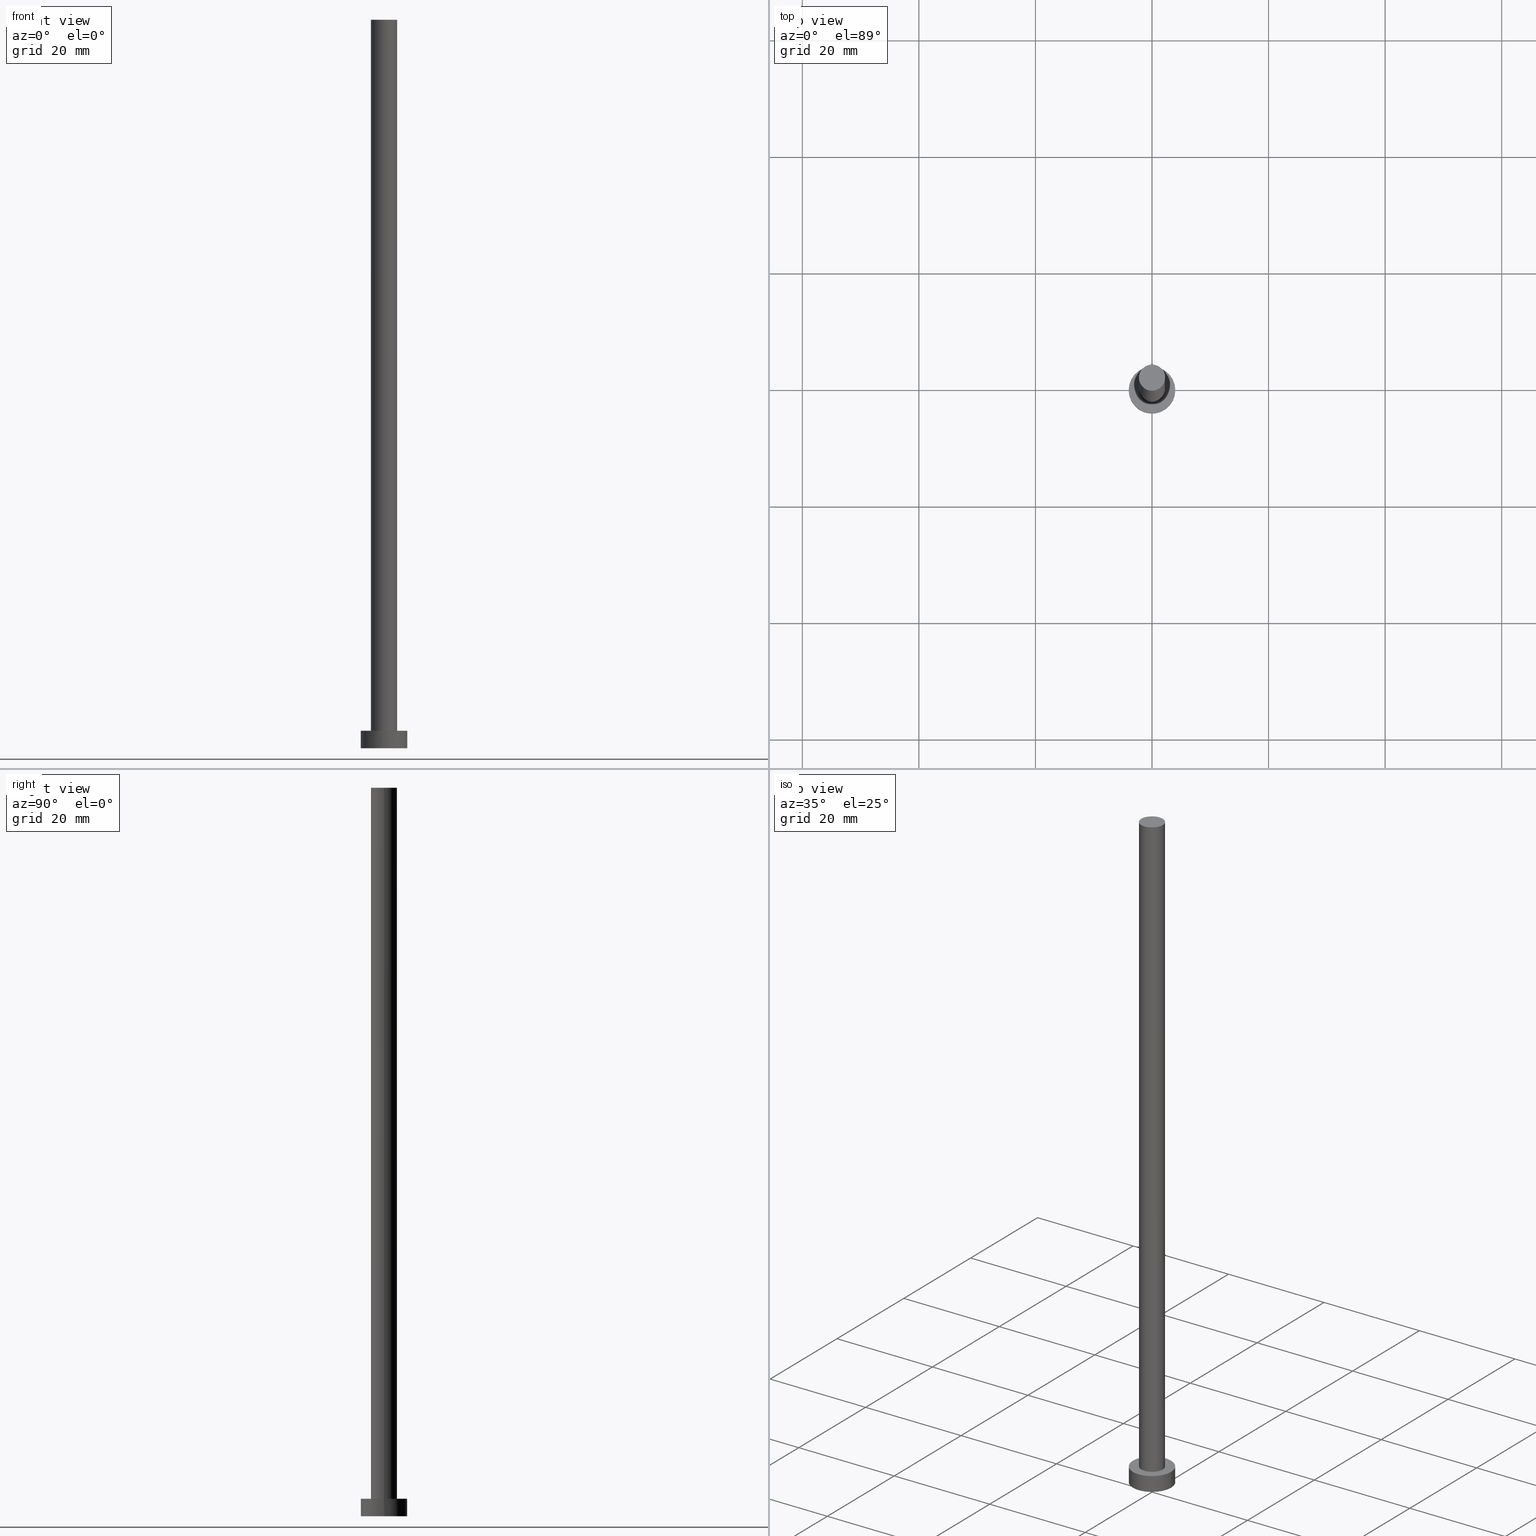
[diagram: canonical four-view strip — front | top / right | iso, engineering-drawing reading convention]
A machine part, canonical four-view strip (front | top / right | iso — engineering-drawing reading convention). The complete STEP part file that produces these views, byte-faithful:
ISO-10303-21;
HEADER;
FILE_DESCRIPTION (( 'STEP AP203' ),
    '1' );
FILE_NAME ('0cb3.STEP',
    '2023-02-12T11:53:39',
    ( '' ),
    ( '' ),
    'SwSTEP 2.0',
    'SolidWorks 2019',
    '' );
FILE_SCHEMA (( 'CONFIG_CONTROL_DESIGN' ));
ENDSEC;

DATA;
#1 = COORDINATED_UNIVERSAL_TIME_OFFSET ( 1, 0, .AHEAD. ) ;
#2 = PRODUCT_DEFINITION ( 'NEZN�M�', '', #146, #51 ) ;
#3 = AXIS2_PLACEMENT_3D ( 'NONE', #52, #134, #210 ) ;
#4 =( NAMED_UNIT ( * ) SI_UNIT ( $, .STERADIAN. ) SOLID_ANGLE_UNIT ( ) );
#5 = PERSON_AND_ORGANIZATION ( #17, #130 ) ;
#6 = DATE_AND_TIME ( #28, #213 ) ;
#7 = DIRECTION ( 'NONE',  ( -0.000000000000000000, -0.000000000000000000, -1.000000000000000000 ) ) ;
#8 = ORIENTED_EDGE ( 'NONE', *, *, #242, .T. ) ;
#9 = DIRECTION ( 'NONE',  ( 1.000000000000000000, 0.000000000000000000, 0.000000000000000000 ) ) ;
#10 = PERSON_AND_ORGANIZATION_ROLE ( 'classification_officer' ) ;
#11 = AXIS2_PLACEMENT_3D ( 'NONE', #143, #24, #237 ) ;
#12 = PERSON_AND_ORGANIZATION ( #17, #130 ) ;
#13 = ORIENTED_EDGE ( 'NONE', *, *, #103, .T. ) ;
#14 = CARTESIAN_POINT ( 'NONE',  ( 0.000000000000000000, 0.000000000000000000, 125.0000000000000000 ) ) ;
#15 = EDGE_CURVE ( 'NONE', #175, #171, #78, .T. ) ;
#16 = DIRECTION ( 'NONE',  ( -0.000000000000000000, -0.000000000000000000, -1.000000000000000000 ) ) ;
#17 = PERSON ( 'NEUR�EN�', 'NEUR�EN�', 'NEUR�EN�', ('NEUR�EN�'), ('NEUR�EN�'), ('NEUR�EN�') ) ;
#18 = AXIS2_PLACEMENT_3D ( 'NONE', #21, #252, #125 ) ;
#19 = DIRECTION ( 'NONE',  ( -1.000000000000000000, 0.000000000000000000, 0.000000000000000000 ) ) ;
#20 = SHAPE_DEFINITION_REPRESENTATION ( #155, #42 ) ;
#21 = CARTESIAN_POINT ( 'NONE',  ( 0.000000000000000000, 0.000000000000000000, 0.000000000000000000 ) ) ;
#22 = EDGE_CURVE ( 'NONE', #73, #116, #126, .T. ) ;
#23 = CARTESIAN_POINT ( 'NONE',  ( -4.000000000000000000, 0.000000000000000000, 3.000000000000000000 ) ) ;
#24 = DIRECTION ( 'NONE',  ( 0.000000000000000000, 0.000000000000000000, 1.000000000000000000 ) ) ;
#25 = VERTEX_POINT ( 'NONE', #172 ) ;
#26 = ADVANCED_FACE ( 'NONE', ( #243 ), #133, .T. ) ;
#27 = EDGE_LOOP ( 'NONE', ( #66, #247, #57, #13 ) ) ;
#28 = CALENDAR_DATE ( 2023, 12, 2 ) ;
#29 = ORIENTED_EDGE ( 'NONE', *, *, #230, .F. ) ;
#30 = APPLICATION_CONTEXT ( 'configuration controlled 3d designs of mechanical parts and assemblies' ) ;
#31 = SECURITY_CLASSIFICATION ( '', '', #209 ) ;
#32 = FACE_OUTER_BOUND ( 'NONE', #71, .T. ) ;
#33 = APPROVAL_ROLE ( '' ) ;
#34 = EDGE_CURVE ( 'NONE', #136, #114, #228, .T. ) ;
#35 = ORIENTED_EDGE ( 'NONE', *, *, #208, .F. ) ;
#36 = ORIENTED_EDGE ( 'NONE', *, *, #15, .F. ) ;
#37 = FACE_OUTER_BOUND ( 'NONE', #191, .T. ) ;
#38 = CARTESIAN_POINT ( 'NONE',  ( 4.000000000000000000, 4.898587196589412829E-16, 0.000000000000000000 ) ) ;
#39 = CYLINDRICAL_SURFACE ( 'NONE', #249, 2.250000000000000000 ) ;
#40 = EDGE_CURVE ( 'NONE', #136, #175, #53, .T. ) ;
#41 = CARTESIAN_POINT ( 'NONE',  ( 0.000000000000000000, 0.000000000000000000, 125.0000000000000000 ) ) ;
#42 = ADVANCED_BREP_SHAPE_REPRESENTATION ( '0cb3', ( #49, #11 ), #178 ) ;
#43 = PERSON_AND_ORGANIZATION ( #17, #130 ) ;
#44 =( NAMED_UNIT ( * ) PLANE_ANGLE_UNIT ( ) SI_UNIT ( $, .RADIAN. ) );
#45 = APPROVAL_ROLE ( '' ) ;
#46 = DATE_TIME_ROLE ( 'classification_date' ) ;
#47 = MECHANICAL_CONTEXT ( 'NONE', #30, 'mechanical' ) ;
#48 = AXIS2_PLACEMENT_3D ( 'NONE', #63, #80, #124 ) ;
#49 = MANIFOLD_SOLID_BREP ( 'P�idat vysunut�m3', #140 ) ;
#50 = CARTESIAN_POINT ( 'NONE',  ( 2.250000000000000000, 2.755455298081543792E-16, 125.0000000000000000 ) ) ;
#51 = DESIGN_CONTEXT ( 'detailed design', #169, 'design' ) ;
#52 = CARTESIAN_POINT ( 'NONE',  ( 0.000000000000000000, 0.000000000000000000, 3.000000000000000000 ) ) ;
#53 = CIRCLE ( 'NONE', #88, 2.250000000000000000 ) ;
#54 = EDGE_CURVE ( 'NONE', #188, #25, #122, .T. ) ;
#55 = CARTESIAN_POINT ( 'NONE',  ( 0.000000000000000000, 0.000000000000000000, 125.0000000000000000 ) ) ;
#56 = ORIENTED_EDGE ( 'NONE', *, *, #54, .T. ) ;
#57 = ORIENTED_EDGE ( 'NONE', *, *, #15, .T. ) ;
#58 = CC_DESIGN_PERSON_AND_ORGANIZATION_ASSIGNMENT ( #12, #70, ( #146 ) ) ;
#59 = CC_DESIGN_APPROVAL ( #158, ( #2 ) ) ;
#60 = LINE ( 'NONE', #23, #227 ) ;
#61 = FACE_OUTER_BOUND ( 'NONE', #154, .T. ) ;
#62 = LINE ( 'NONE', #139, #235 ) ;
#63 = CARTESIAN_POINT ( 'NONE',  ( 0.000000000000000000, 0.000000000000000000, 3.000000000000000000 ) ) ;
#64 = DATE_AND_TIME ( #166, #254 ) ;
#65 = PERSON_AND_ORGANIZATION ( #17, #130 ) ;
#66 = ORIENTED_EDGE ( 'NONE', *, *, #34, .F. ) ;
#67 = ADVANCED_FACE ( 'NONE', ( #32 ), #115, .T. ) ;
#68 = APPLICATION_PROTOCOL_DEFINITION ( 'international standard', 'config_control_design', 1994, #30 ) ;
#69 = APPROVAL_PERSON_ORGANIZATION ( #190, #201, #33 ) ;
#70 = PERSON_AND_ORGANIZATION_ROLE ( 'design_supplier' ) ;
#71 = EDGE_LOOP ( 'NONE', ( #239, #152, #96, #117 ) ) ;
#72 = LOCAL_TIME ( 12, 53, 39.00000000000000000, #203 ) ;
#73 = VERTEX_POINT ( 'NONE', #38 ) ;
#74 = PRODUCT ( '0cb3', '0cb3', '', ( #47 ) ) ;
#75 = AXIS2_PLACEMENT_3D ( 'NONE', #231, #197, #138 ) ;
#76 = DATE_AND_TIME ( #93, #177 ) ;
#77 = EDGE_LOOP ( 'NONE', ( #244, #112 ) ) ;
#78 = LINE ( 'NONE', #156, #222 ) ;
#79 = CC_DESIGN_APPROVAL ( #173, ( #31 ) ) ;
#80 = DIRECTION ( 'NONE',  ( -0.000000000000000000, -0.000000000000000000, -1.000000000000000000 ) ) ;
#81 = DIRECTION ( 'NONE',  ( 1.000000000000000000, 0.000000000000000000, 0.000000000000000000 ) ) ;
#82 = CARTESIAN_POINT ( 'NONE',  ( 2.250000000000000000, 2.755455298081543792E-16, 125.0000000000000000 ) ) ;
#83 = EDGE_CURVE ( 'NONE', #175, #136, #224, .T. ) ;
#84 = DIRECTION ( 'NONE',  ( 0.000000000000000000, 0.000000000000000000, 1.000000000000000000 ) ) ;
#85 = DIRECTION ( 'NONE',  ( -0.000000000000000000, -0.000000000000000000, -1.000000000000000000 ) ) ;
#86 = CALENDAR_DATE ( 2023, 12, 2 ) ;
#87 = DATE_AND_TIME ( #86, #147 ) ;
#88 = AXIS2_PLACEMENT_3D ( 'NONE', #55, #151, #226 ) ;
#89 = AXIS2_PLACEMENT_3D ( 'NONE', #101, #248, #142 ) ;
#90 = APPROVAL_STATUS ( 'not_yet_approved' ) ;
#91 = CARTESIAN_POINT ( 'NONE',  ( 0.000000000000000000, 0.000000000000000000, 0.000000000000000000 ) ) ;
#92 = AXIS2_PLACEMENT_3D ( 'NONE', #41, #251, #163 ) ;
#93 = CALENDAR_DATE ( 2023, 12, 2 ) ;
#94 = PERSON_AND_ORGANIZATION ( #17, #130 ) ;
#95 = ORIENTED_EDGE ( 'NONE', *, *, #22, .F. ) ;
#96 = ORIENTED_EDGE ( 'NONE', *, *, #22, .T. ) ;
#97 = AXIS2_PLACEMENT_3D ( 'NONE', #149, #245, #225 ) ;
#98 = PRODUCT_RELATED_PRODUCT_CATEGORY ( 'detail', '', ( #74 ) ) ;
#99 = ORIENTED_EDGE ( 'NONE', *, *, #153, .T. ) ;
#100 = DIRECTION ( 'NONE',  ( 0.000000000000000000, 0.000000000000000000, 1.000000000000000000 ) ) ;
#101 = CARTESIAN_POINT ( 'NONE',  ( 0.000000000000000000, 0.000000000000000000, 3.000000000000000000 ) ) ;
#102 = FACE_OUTER_BOUND ( 'NONE', #77, .T. ) ;
#103 = EDGE_CURVE ( 'NONE', #171, #114, #128, .T. ) ;
#104 = DIRECTION ( 'NONE',  ( -1.000000000000000000, 0.000000000000000000, 0.000000000000000000 ) ) ;
#105 = CC_DESIGN_SECURITY_CLASSIFICATION ( #31, ( #146 ) ) ;
#106 = ADVANCED_FACE ( 'NONE', ( #199, #61 ), #232, .T. ) ;
#107 = PERSON_AND_ORGANIZATION_ROLE ( 'creator' ) ;
#108 = ORIENTED_EDGE ( 'NONE', *, *, #141, .T. ) ;
#109 = APPROVAL_PERSON_ORGANIZATION ( #65, #173, #45 ) ;
#110 = CIRCLE ( 'NONE', #164, 4.000000000000000000 ) ;
#111 = APPLICATION_PROTOCOL_DEFINITION ( 'international standard', 'config_control_design', 1994, #169 ) ;
#112 = ORIENTED_EDGE ( 'NONE', *, *, #40, .T. ) ;
#113 = CC_DESIGN_DATE_AND_TIME_ASSIGNMENT ( #255, #46, ( #31 ) ) ;
#114 = VERTEX_POINT ( 'NONE', #217 ) ;
#115 = CYLINDRICAL_SURFACE ( 'NONE', #48, 4.000000000000000000 ) ;
#116 = VERTEX_POINT ( 'NONE', #215 ) ;
#117 = ORIENTED_EDGE ( 'NONE', *, *, #141, .F. ) ;
#118 = AXIS2_PLACEMENT_3D ( 'NONE', #160, #250, #81 ) ;
#119 = FACE_OUTER_BOUND ( 'NONE', #131, .T. ) ;
#120 = CARTESIAN_POINT ( 'NONE',  ( 0.000000000000000000, 0.000000000000000000, 0.000000000000000000 ) ) ;
#121 = CARTESIAN_POINT ( 'NONE',  ( 0.000000000000000000, 0.000000000000000000, 125.0000000000000000 ) ) ;
#122 = CIRCLE ( 'NONE', #3, 4.000000000000000000 ) ;
#123 = APPROVAL_PERSON_ORGANIZATION ( #5, #158, #204 ) ;
#124 = DIRECTION ( 'NONE',  ( -1.000000000000000000, 0.000000000000000000, 0.000000000000000000 ) ) ;
#125 = DIRECTION ( 'NONE',  ( 1.000000000000000000, 0.000000000000000000, 0.000000000000000000 ) ) ;
#126 = CIRCLE ( 'NONE', #205, 4.000000000000000000 ) ;
#127 = COORDINATED_UNIVERSAL_TIME_OFFSET ( 1, 0, .AHEAD. ) ;
#128 = CIRCLE ( 'NONE', #118, 2.250000000000000000 ) ;
#129 = PERSON_AND_ORGANIZATION ( #17, #130 ) ;
#130 = ORGANIZATION ( 'NEUR�EN�', 'NEUR�EN�', '' ) ;
#131 = EDGE_LOOP ( 'NONE', ( #29, #95 ) ) ;
#132 = CC_DESIGN_PERSON_AND_ORGANIZATION_ASSIGNMENT ( #43, #107, ( #2 ) ) ;
#133 = CYLINDRICAL_SURFACE ( 'NONE', #97, 4.000000000000000000 ) ;
#134 = DIRECTION ( 'NONE',  ( 0.000000000000000000, 0.000000000000000000, 1.000000000000000000 ) ) ;
#135 = CIRCLE ( 'NONE', #18, 4.000000000000000000 ) ;
#136 = VERTEX_POINT ( 'NONE', #82 ) ;
#137 = ORIENTED_EDGE ( 'NONE', *, *, #103, .F. ) ;
#138 = DIRECTION ( 'NONE',  ( 1.000000000000000000, 0.000000000000000000, 0.000000000000000000 ) ) ;
#139 = CARTESIAN_POINT ( 'NONE',  ( 4.000000000000000000, 4.898587196589412829E-16, 3.000000000000000000 ) ) ;
#140 = CLOSED_SHELL ( 'NONE', ( #148, #67, #26, #106, #176, #192, #186 ) ) ;
#141 = EDGE_CURVE ( 'NONE', #188, #116, #60, .T. ) ;
#142 = DIRECTION ( 'NONE',  ( 1.000000000000000000, 0.000000000000000000, -0.000000000000000000 ) ) ;
#143 = CARTESIAN_POINT ( 'NONE',  ( 0.000000000000000000, 0.000000000000000000, 0.000000000000000000 ) ) ;
#144 =( LENGTH_UNIT ( ) NAMED_UNIT ( * ) SI_UNIT ( .MILLI., .METRE. ) );
#145 = VECTOR ( 'NONE', #207, 1000.000000000000000 ) ;
#146 = PRODUCT_DEFINITION_FORMATION_WITH_SPECIFIED_SOURCE ( 'LIBOVOLN�', '', #74, .NOT_KNOWN. ) ;
#147 = LOCAL_TIME ( 12, 53, 39.00000000000000000, #183 ) ;
#148 = ADVANCED_FACE ( 'NONE', ( #37 ), #39, .T. ) ;
#149 = CARTESIAN_POINT ( 'NONE',  ( 0.000000000000000000, 0.000000000000000000, 3.000000000000000000 ) ) ;
#150 = PERSON_AND_ORGANIZATION ( #17, #130 ) ;
#151 = DIRECTION ( 'NONE',  ( 0.000000000000000000, 0.000000000000000000, 1.000000000000000000 ) ) ;
#152 = ORIENTED_EDGE ( 'NONE', *, *, #208, .T. ) ;
#153 = EDGE_CURVE ( 'NONE', #114, #171, #185, .T. ) ;
#154 = EDGE_LOOP ( 'NONE', ( #56, #8 ) ) ;
#155 = PRODUCT_DEFINITION_SHAPE ( 'NONE', 'NONE',  #2 ) ;
#156 = CARTESIAN_POINT ( 'NONE',  ( -2.250000000000000000, 0.000000000000000000, 125.0000000000000000 ) ) ;
#157 = PLANE ( 'NONE',  #167 ) ;
#158 = APPROVAL ( #90, 'NEUR�EN�' ) ;
#159 = CC_DESIGN_APPROVAL ( #201, ( #146 ) ) ;
#160 = CARTESIAN_POINT ( 'NONE',  ( 0.000000000000000000, 0.000000000000000000, 3.000000000000000000 ) ) ;
#161 = CYLINDRICAL_SURFACE ( 'NONE', #189, 2.250000000000000000 ) ;
#162 = DIRECTION ( 'NONE',  ( 1.000000000000000000, 0.000000000000000000, 0.000000000000000000 ) ) ;
#163 = DIRECTION ( 'NONE',  ( 1.000000000000000000, 0.000000000000000000, -0.000000000000000000 ) ) ;
#164 = AXIS2_PLACEMENT_3D ( 'NONE', #220, #84, #162 ) ;
#165 = CC_DESIGN_DATE_AND_TIME_ASSIGNMENT ( #87, #238, ( #2 ) ) ;
#166 = CALENDAR_DATE ( 2023, 12, 2 ) ;
#167 = AXIS2_PLACEMENT_3D ( 'NONE', #120, #198, #234 ) ;
#168 = DIRECTION ( 'NONE',  ( 0.000000000000000000, 0.000000000000000000, 1.000000000000000000 ) ) ;
#169 = APPLICATION_CONTEXT ( 'configuration controlled 3d designs of mechanical parts and assemblies' ) ;
#170 = COORDINATED_UNIVERSAL_TIME_OFFSET ( 1, 0, .AHEAD. ) ;
#171 = VERTEX_POINT ( 'NONE', #180 ) ;
#172 = CARTESIAN_POINT ( 'NONE',  ( 4.000000000000000000, 4.898587196589412829E-16, 3.000000000000000000 ) ) ;
#173 = APPROVAL ( #223, 'NEUR�EN�' ) ;
#174 = ORIENTED_EDGE ( 'NONE', *, *, #153, .F. ) ;
#175 = VERTEX_POINT ( 'NONE', #253 ) ;
#176 = ADVANCED_FACE ( 'NONE', ( #119 ), #157, .F. ) ;
#177 = LOCAL_TIME ( 12, 53, 39.00000000000000000, #127 ) ;
#178 =( GEOMETRIC_REPRESENTATION_CONTEXT ( 3 ) GLOBAL_UNCERTAINTY_ASSIGNED_CONTEXT ( ( #214 ) ) GLOBAL_UNIT_ASSIGNED_CONTEXT ( ( #144, #44, #4 ) ) REPRESENTATION_CONTEXT ( 'NONE', 'WORKASPACE' ) );
#179 = PLANE ( 'NONE',  #92 ) ;
#180 = CARTESIAN_POINT ( 'NONE',  ( -2.250000000000000000, 0.000000000000000000, 3.000000000000000000 ) ) ;
#181 = DIRECTION ( 'NONE',  ( 1.000000000000000000, 0.000000000000000000, 0.000000000000000000 ) ) ;
#182 = CALENDAR_DATE ( 2023, 12, 2 ) ;
#183 = COORDINATED_UNIVERSAL_TIME_OFFSET ( 1, 0, .AHEAD. ) ;
#184 = ORIENTED_EDGE ( 'NONE', *, *, #230, .T. ) ;
#185 = CIRCLE ( 'NONE', #75, 2.250000000000000000 ) ;
#186 = ADVANCED_FACE ( 'NONE', ( #102 ), #179, .T. ) ;
#187 = APPROVAL_STATUS ( 'not_yet_approved' ) ;
#188 = VERTEX_POINT ( 'NONE', #219 ) ;
#189 = AXIS2_PLACEMENT_3D ( 'NONE', #233, #236, #104 ) ;
#190 = PERSON_AND_ORGANIZATION ( #17, #130 ) ;
#191 = EDGE_LOOP ( 'NONE', ( #193, #211, #99, #36 ) ) ;
#192 = ADVANCED_FACE ( 'NONE', ( #202 ), #161, .T. ) ;
#193 = ORIENTED_EDGE ( 'NONE', *, *, #40, .F. ) ;
#194 = AXIS2_PLACEMENT_3D ( 'NONE', #14, #100, #181 ) ;
#195 = ORIENTED_EDGE ( 'NONE', *, *, #54, .F. ) ;
#196 = CC_DESIGN_PERSON_AND_ORGANIZATION_ASSIGNMENT ( #150, #241, ( #146 ) ) ;
#197 = DIRECTION ( 'NONE',  ( 0.000000000000000000, 0.000000000000000000, 1.000000000000000000 ) ) ;
#198 = DIRECTION ( 'NONE',  ( 0.000000000000000000, 0.000000000000000000, 1.000000000000000000 ) ) ;
#199 = FACE_BOUND ( 'NONE', #212, .T. ) ;
#200 = DIRECTION ( 'NONE',  ( -0.000000000000000000, -0.000000000000000000, -1.000000000000000000 ) ) ;
#201 = APPROVAL ( #187, 'NEUR�EN�' ) ;
#202 = FACE_OUTER_BOUND ( 'NONE', #27, .T. ) ;
#203 = COORDINATED_UNIVERSAL_TIME_OFFSET ( 1, 0, .AHEAD. ) ;
#204 = APPROVAL_ROLE ( '' ) ;
#205 = AXIS2_PLACEMENT_3D ( 'NONE', #91, #168, #9 ) ;
#206 = PERSON_AND_ORGANIZATION_ROLE ( 'design_owner' ) ;
#207 = DIRECTION ( 'NONE',  ( -0.000000000000000000, -0.000000000000000000, -1.000000000000000000 ) ) ;
#208 = EDGE_CURVE ( 'NONE', #25, #73, #62, .T. ) ;
#209 = SECURITY_CLASSIFICATION_LEVEL ( 'unclassified' ) ;
#210 = DIRECTION ( 'NONE',  ( 1.000000000000000000, 0.000000000000000000, 0.000000000000000000 ) ) ;
#211 = ORIENTED_EDGE ( 'NONE', *, *, #34, .T. ) ;
#212 = EDGE_LOOP ( 'NONE', ( #137, #174 ) ) ;
#213 = LOCAL_TIME ( 12, 53, 39.00000000000000000, #170 ) ;
#214 = UNCERTAINTY_MEASURE_WITH_UNIT (LENGTH_MEASURE( 1.000000000000000082E-05 ), #144, 'distance_accuracy_value', 'NONE');
#215 = CARTESIAN_POINT ( 'NONE',  ( -4.000000000000000000, 0.000000000000000000, 0.000000000000000000 ) ) ;
#216 = APPROVAL_DATE_TIME ( #76, #173 ) ;
#217 = CARTESIAN_POINT ( 'NONE',  ( 2.250000000000000000, 2.755455298081543792E-16, 3.000000000000000000 ) ) ;
#218 = CC_DESIGN_PERSON_AND_ORGANIZATION_ASSIGNMENT ( #94, #10, ( #31 ) ) ;
#219 = CARTESIAN_POINT ( 'NONE',  ( -4.000000000000000000, 0.000000000000000000, 3.000000000000000000 ) ) ;
#220 = CARTESIAN_POINT ( 'NONE',  ( 0.000000000000000000, 0.000000000000000000, 3.000000000000000000 ) ) ;
#221 = APPROVAL_DATE_TIME ( #64, #158 ) ;
#222 = VECTOR ( 'NONE', #7, 1000.000000000000000 ) ;
#223 = APPROVAL_STATUS ( 'not_yet_approved' ) ;
#224 = CIRCLE ( 'NONE', #194, 2.250000000000000000 ) ;
#225 = DIRECTION ( 'NONE',  ( -1.000000000000000000, 0.000000000000000000, 0.000000000000000000 ) ) ;
#226 = DIRECTION ( 'NONE',  ( 1.000000000000000000, 0.000000000000000000, 0.000000000000000000 ) ) ;
#227 = VECTOR ( 'NONE', #16, 1000.000000000000000 ) ;
#228 = LINE ( 'NONE', #50, #145 ) ;
#229 = APPROVAL_DATE_TIME ( #6, #201 ) ;
#230 = EDGE_CURVE ( 'NONE', #116, #73, #135, .T. ) ;
#231 = CARTESIAN_POINT ( 'NONE',  ( 0.000000000000000000, 0.000000000000000000, 3.000000000000000000 ) ) ;
#232 = PLANE ( 'NONE',  #89 ) ;
#233 = CARTESIAN_POINT ( 'NONE',  ( 0.000000000000000000, 0.000000000000000000, 125.0000000000000000 ) ) ;
#234 = DIRECTION ( 'NONE',  ( 1.000000000000000000, 0.000000000000000000, -0.000000000000000000 ) ) ;
#235 = VECTOR ( 'NONE', #200, 1000.000000000000000 ) ;
#236 = DIRECTION ( 'NONE',  ( -0.000000000000000000, -0.000000000000000000, -1.000000000000000000 ) ) ;
#237 = DIRECTION ( 'NONE',  ( 1.000000000000000000, 0.000000000000000000, 0.000000000000000000 ) ) ;
#238 = DATE_TIME_ROLE ( 'creation_date' ) ;
#239 = ORIENTED_EDGE ( 'NONE', *, *, #242, .F. ) ;
#240 = CC_DESIGN_PERSON_AND_ORGANIZATION_ASSIGNMENT ( #129, #206, ( #74 ) ) ;
#241 = PERSON_AND_ORGANIZATION_ROLE ( 'creator' ) ;
#242 = EDGE_CURVE ( 'NONE', #25, #188, #110, .T. ) ;
#243 = FACE_OUTER_BOUND ( 'NONE', #246, .T. ) ;
#244 = ORIENTED_EDGE ( 'NONE', *, *, #83, .T. ) ;
#245 = DIRECTION ( 'NONE',  ( -0.000000000000000000, -0.000000000000000000, -1.000000000000000000 ) ) ;
#246 = EDGE_LOOP ( 'NONE', ( #35, #195, #108, #184 ) ) ;
#247 = ORIENTED_EDGE ( 'NONE', *, *, #83, .F. ) ;
#248 = DIRECTION ( 'NONE',  ( 0.000000000000000000, 0.000000000000000000, 1.000000000000000000 ) ) ;
#249 = AXIS2_PLACEMENT_3D ( 'NONE', #121, #85, #19 ) ;
#250 = DIRECTION ( 'NONE',  ( 0.000000000000000000, 0.000000000000000000, 1.000000000000000000 ) ) ;
#251 = DIRECTION ( 'NONE',  ( 0.000000000000000000, 0.000000000000000000, 1.000000000000000000 ) ) ;
#252 = DIRECTION ( 'NONE',  ( 0.000000000000000000, 0.000000000000000000, 1.000000000000000000 ) ) ;
#253 = CARTESIAN_POINT ( 'NONE',  ( -2.250000000000000000, 0.000000000000000000, 125.0000000000000000 ) ) ;
#254 = LOCAL_TIME ( 12, 53, 39.00000000000000000, #1 ) ;
#255 = DATE_AND_TIME ( #182, #72 ) ;
ENDSEC;
END-ISO-10303-21;
